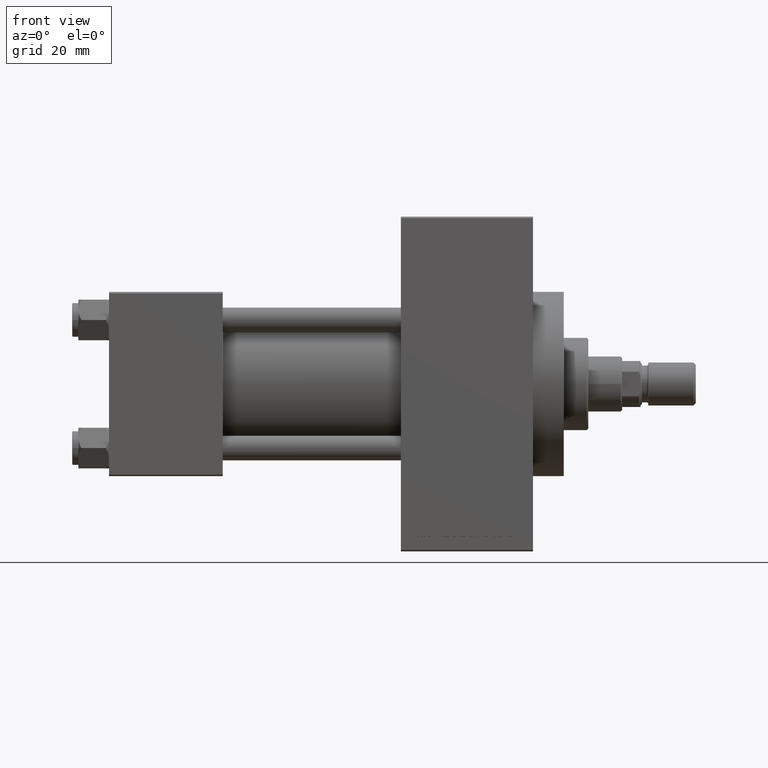
[diagram: clean part render]
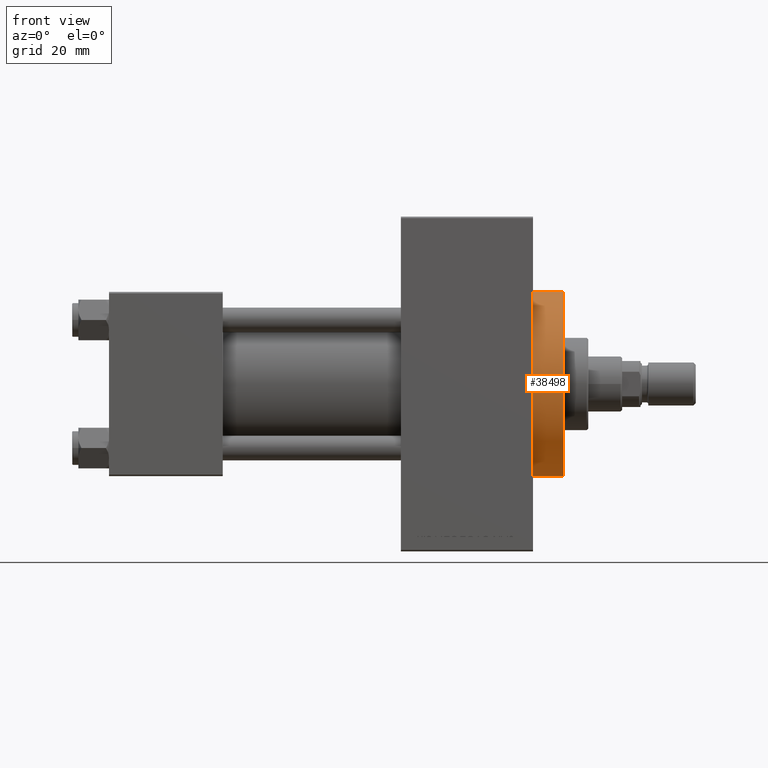
[diagram: same view with one face highlighted and labeled with its STEP entity id]
A machine part, front view. The second image highlights one B-rep face of the part: STEP entity #38498.
In plain terms, the highlighted cylindrical surface (partial cylindrical patch) has radius 30 mm, axis along (-1, -0, -0).
Its self-contained STEP definition (entity closure, byte-faithful):
#370 = VERTEX_POINT ( 'NONE', #38834 ) ;
#1264 = VERTEX_POINT ( 'NONE', #25736 ) ;
#3264 = CIRCLE ( 'NONE', #30348, 30.00000000000000000 ) ;
#4365 = DIRECTION ( 'NONE',  ( 0.000000000000000000, 0.000000000000000000, -1.000000000000000000 ) ) ;
#4505 = CARTESIAN_POINT ( 'NONE',  ( 148.0000000000000284, 0.000000000000000000, 0.000000000000000000 ) ) ;
#4755 = DIRECTION ( 'NONE',  ( -1.000000000000000000, -0.000000000000000000, -0.000000000000000000 ) ) ;
#4924 = EDGE_LOOP ( 'NONE', ( #41478, #25726, #47256, #11488, #22047 ) ) ;
#8420 = VERTEX_POINT ( 'NONE', #22138 ) ;
#11488 = ORIENTED_EDGE ( 'NONE', *, *, #30457, .T. ) ;
#11725 = VECTOR ( 'NONE', #19316, 1000.000000000000000 ) ;
#17363 = DIRECTION ( 'NONE',  ( 0.000000000000000000, 0.000000000000000000, -1.000000000000000000 ) ) ;
#18398 = CARTESIAN_POINT ( 'NONE',  ( 148.0000000000000284, 0.000000000000000000, 30.00000000000000000 ) ) ;
#18399 = CARTESIAN_POINT ( 'NONE',  ( 148.0000000000000284, 3.673940397442059178E-15, -30.00000000000000000 ) ) ;
#19316 = DIRECTION ( 'NONE',  ( -1.000000000000000000, -0.000000000000000000, -0.000000000000000000 ) ) ;
#19497 = CYLINDRICAL_SURFACE ( 'NONE', #36395, 30.00000000000000000 ) ;
#20476 = VECTOR ( 'NONE', #46086, 1000.000000000000000 ) ;
#21730 = DIRECTION ( 'NONE',  ( 1.000000000000000000, 0.000000000000000000, 0.000000000000000000 ) ) ;
#22047 = ORIENTED_EDGE ( 'NONE', *, *, #42840, .T. ) ;
#22138 = CARTESIAN_POINT ( 'NONE',  ( 138.0000000000000000, 0.000000000000000000, 30.00000000000000000 ) ) ;
#24412 = CARTESIAN_POINT ( 'NONE',  ( 138.0000000000000000, 0.000000000000000000, 0.000000000000000000 ) ) ;
#24915 = FACE_OUTER_BOUND ( 'NONE', #4924, .T. ) ;
#25726 = ORIENTED_EDGE ( 'NONE', *, *, #30364, .F. ) ;
#25736 = CARTESIAN_POINT ( 'NONE',  ( 138.0000000000000000, -30.00000000000000000, 0.000000000000000000 ) ) ;
#26127 = LINE ( 'NONE', #30256, #11725 ) ;
#27017 = DIRECTION ( 'NONE',  ( 0.000000000000000000, 0.000000000000000000, 1.000000000000000000 ) ) ;
#27919 = LINE ( 'NONE', #39053, #20476 ) ;
#28776 = CIRCLE ( 'NONE', #31097, 30.00000000000000000 ) ;
#29790 = CARTESIAN_POINT ( 'NONE',  ( 148.0000000000000284, 0.000000000000000000, 0.000000000000000000 ) ) ;
#30256 = CARTESIAN_POINT ( 'NONE',  ( 148.0000000000000284, 3.673940397442059178E-15, -30.00000000000000000 ) ) ;
#30348 = AXIS2_PLACEMENT_3D ( 'NONE', #24412, #21730, #17363 ) ;
#30364 = EDGE_CURVE ( 'NONE', #38276, #31949, #28776, .T. ) ;
#30457 = EDGE_CURVE ( 'NONE', #8420, #1264, #3264, .T. ) ;
#31097 = AXIS2_PLACEMENT_3D ( 'NONE', #29790, #40689, #4365 ) ;
#31365 = DIRECTION ( 'NONE',  ( 1.000000000000000000, 0.000000000000000000, 0.000000000000000000 ) ) ;
#31949 = VERTEX_POINT ( 'NONE', #18399 ) ;
#33721 = EDGE_CURVE ( 'NONE', #38276, #8420, #27919, .T. ) ;
#35741 = CIRCLE ( 'NONE', #42741, 30.00000000000000000 ) ;
#36395 = AXIS2_PLACEMENT_3D ( 'NONE', #4505, #4755, #27017 ) ;
#38276 = VERTEX_POINT ( 'NONE', #18398 ) ;
#38498 = ADVANCED_FACE ( 'NONE', ( #24915 ), #19497, .T. ) ;
#38834 = CARTESIAN_POINT ( 'NONE',  ( 138.0000000000000000, 3.673940397442059178E-15, -30.00000000000000000 ) ) ;
#39053 = CARTESIAN_POINT ( 'NONE',  ( 148.0000000000000284, 0.000000000000000000, 30.00000000000000000 ) ) ;
#40689 = DIRECTION ( 'NONE',  ( 1.000000000000000000, 0.000000000000000000, 0.000000000000000000 ) ) ;
#41478 = ORIENTED_EDGE ( 'NONE', *, *, #43777, .F. ) ;
#41557 = DIRECTION ( 'NONE',  ( 0.000000000000000000, 0.000000000000000000, -1.000000000000000000 ) ) ;
#41801 = CARTESIAN_POINT ( 'NONE',  ( 138.0000000000000000, 0.000000000000000000, 0.000000000000000000 ) ) ;
#42741 = AXIS2_PLACEMENT_3D ( 'NONE', #41801, #31365, #41557 ) ;
#42840 = EDGE_CURVE ( 'NONE', #1264, #370, #35741, .T. ) ;
#43777 = EDGE_CURVE ( 'NONE', #31949, #370, #26127, .T. ) ;
#46086 = DIRECTION ( 'NONE',  ( -1.000000000000000000, -0.000000000000000000, -0.000000000000000000 ) ) ;
#47256 = ORIENTED_EDGE ( 'NONE', *, *, #33721, .T. ) ;